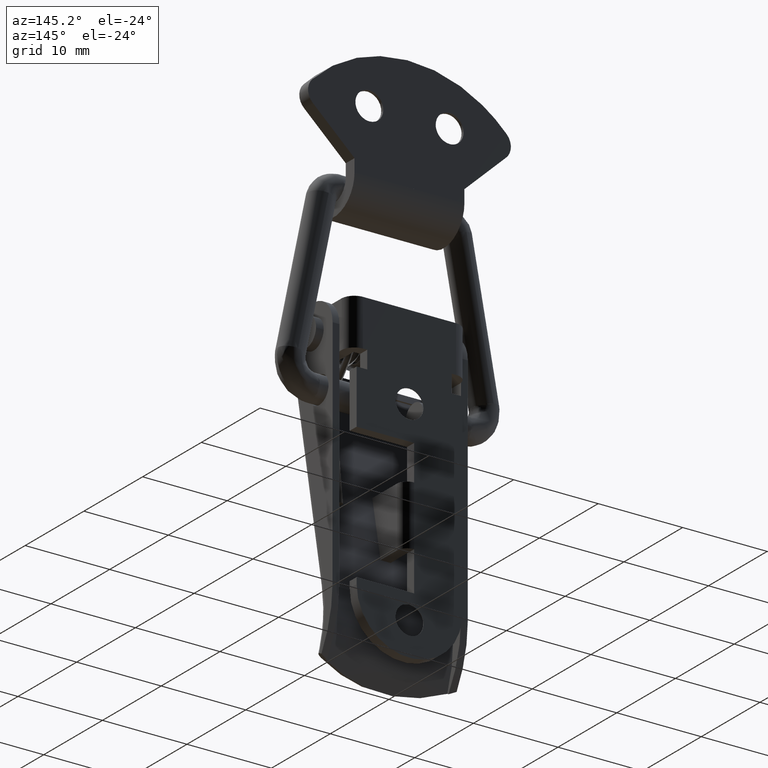
[diagram: clean part render]
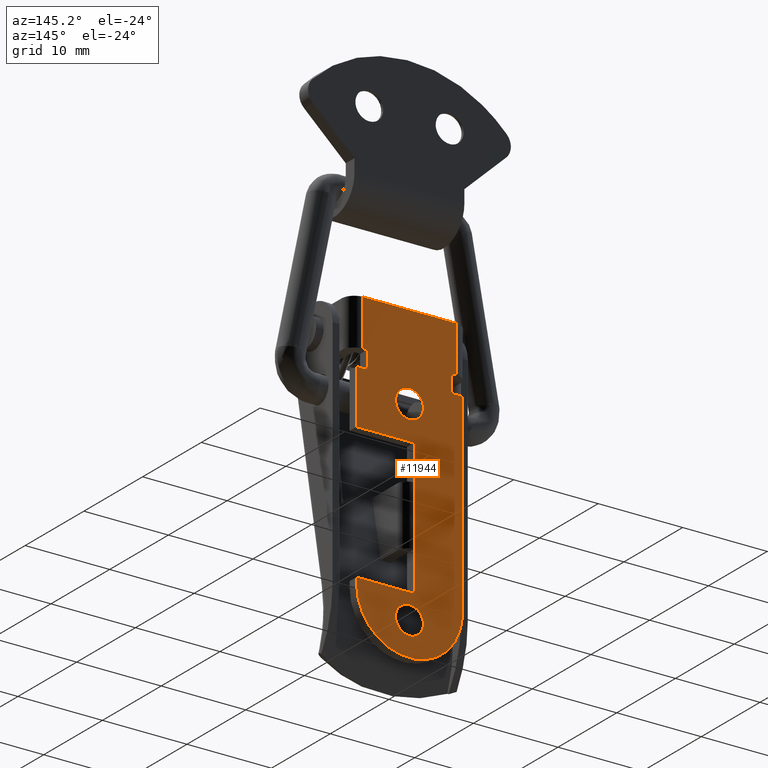
[diagram: same view with one face highlighted and labeled with its STEP entity id]
A machine part, auxiliary view. The second image highlights one B-rep face of the part: STEP entity #11944.
In plain terms, the highlighted face is a freeform B-spline surface patch.
Its self-contained STEP definition (entity closure, byte-faithful):
#9967=CARTESIAN_POINT('',(-1.646922417375860,3.500000000000000,-45.399269909436882));
#9968=VERTEX_POINT('',#9967);
#10008=CARTESIAN_POINT('',(1.646922417375860,3.500000000000000,-45.600730090563118));
#10009=VERTEX_POINT('',#10008);
#10015=CARTESIAN_POINT('',(2.143061E-016,3.500000000000000,-47.149999999999999));
#10016=VERTEX_POINT('',#10015);
#10017=CARTESIAN_POINT('',(2.143061E-016,3.500000000000000,-47.149999999999999));
#10018=CARTESIAN_POINT('',(1.552165010082232,3.499999999999999,-47.149999999999999));
#10019=CARTESIAN_POINT('',(1.646922417375860,3.500000000000000,-45.600730090563118));
#10027=(BOUNDED_CURVE()B_SPLINE_CURVE(2,(#10017,#10018,#10019),.UNSPECIFIED.,.F.,.U.)B_SPLINE_CURVE_WITH_KNOTS((3,3),(0.500000000000000,0.739332962207331),.UNSPECIFIED.)CURVE()GEOMETRIC_REPRESENTATION_ITEM()RATIONAL_B_SPLINE_CURVE((1.0,0.719603993323746,0.976072041598968))REPRESENTATION_ITEM(''));
#10028=EDGE_CURVE('',#10016,#10009,#10027,.T.);
#10030=CARTESIAN_POINT('',(-1.646922417375859,3.500000000000000,-45.399269909436882));
#10031=CARTESIAN_POINT('',(-1.650000000000000,3.500000000000000,-45.449587940391574));
#10032=CARTESIAN_POINT('',(-1.650000000000000,3.500000000000000,-45.500000000000000));
#10033=CARTESIAN_POINT('',(-1.649999999999999,3.499999999999999,-47.149999999999999));
#10034=CARTESIAN_POINT('',(2.143061E-016,3.500000000000000,-47.149999999999999));
#10042=(BOUNDED_CURVE()B_SPLINE_CURVE(2,(#10030,#10031,#10032,#10033,#10034),.UNSPECIFIED.,.F.,.U.)B_SPLINE_CURVE_WITH_KNOTS((3,2,3),(0.239332962207332,0.250000000000000,0.500000000000000),.UNSPECIFIED.)CURVE()GEOMETRIC_REPRESENTATION_ITEM()RATIONAL_B_SPLINE_CURVE((0.976072041598969,0.987502787862802,1.0,0.707106781186548,1.0))REPRESENTATION_ITEM(''));
#10043=EDGE_CURVE('',#9968,#10016,#10042,.T.);
#10067=CARTESIAN_POINT('',(2.143061E-016,3.500000000000000,-43.850000000000001));
#10068=VERTEX_POINT('',#10067);
#10069=CARTESIAN_POINT('',(2.143061E-016,3.500000000000000,-43.850000000000001));
#10070=CARTESIAN_POINT('',(-1.552165010082234,3.500000000000000,-43.850000000000001));
#10071=CARTESIAN_POINT('',(-1.646922417375860,3.500000000000000,-45.399269909436889));
#10079=(BOUNDED_CURVE()B_SPLINE_CURVE(2,(#10069,#10070,#10071),.UNSPECIFIED.,.F.,.U.)B_SPLINE_CURVE_WITH_KNOTS((3,3),(0.0,0.239332962207332),.UNSPECIFIED.)CURVE()GEOMETRIC_REPRESENTATION_ITEM()RATIONAL_B_SPLINE_CURVE((1.0,0.719603993323745,0.976072041598969))REPRESENTATION_ITEM(''));
#10080=EDGE_CURVE('',#10068,#9968,#10079,.T.);
#10082=CARTESIAN_POINT('',(1.646922417375859,3.500000000000000,-45.600730090563118));
#10083=CARTESIAN_POINT('',(1.650000000000000,3.500000000000000,-45.550412059608433));
#10084=CARTESIAN_POINT('',(1.650000000000000,3.500000000000000,-45.500000000000000));
#10085=CARTESIAN_POINT('',(1.649999999999999,3.499999999999999,-43.850000000000001));
#10086=CARTESIAN_POINT('',(2.143061E-016,3.500000000000000,-43.850000000000001));
#10094=(BOUNDED_CURVE()B_SPLINE_CURVE(2,(#10082,#10083,#10084,#10085,#10086),.UNSPECIFIED.,.F.,.U.)B_SPLINE_CURVE_WITH_KNOTS((3,2,3),(0.739332962207330,0.750000000000000,1.0),.UNSPECIFIED.)CURVE()GEOMETRIC_REPRESENTATION_ITEM()RATIONAL_B_SPLINE_CURVE((0.976072041598966,0.987502787862801,1.0,0.707106781186548,1.0))REPRESENTATION_ITEM(''));
#10095=EDGE_CURVE('',#10009,#10068,#10094,.T.);
#10271=CARTESIAN_POINT('',(-1.646922417375860,3.500000000000000,-22.399269909436889));
#10272=VERTEX_POINT('',#10271);
#10312=CARTESIAN_POINT('',(1.646922417375861,3.500000000000000,-22.600730090563111));
#10313=VERTEX_POINT('',#10312);
#10319=CARTESIAN_POINT('',(2.143061E-016,3.500000000000000,-24.149999999999999));
#10320=VERTEX_POINT('',#10319);
#10321=CARTESIAN_POINT('',(2.143061E-016,3.500000000000000,-24.149999999999999));
#10322=CARTESIAN_POINT('',(1.552165010082242,3.500000000000000,-24.150000000000006));
#10323=CARTESIAN_POINT('',(1.646922417375861,3.500000000000000,-22.600730090563104));
#10331=(BOUNDED_CURVE()B_SPLINE_CURVE(2,(#10321,#10322,#10323),.UNSPECIFIED.,.F.,.U.)B_SPLINE_CURVE_WITH_KNOTS((3,3),(0.500000000000000,0.739332962207332),.UNSPECIFIED.)CURVE()GEOMETRIC_REPRESENTATION_ITEM()RATIONAL_B_SPLINE_CURVE((1.0,0.719603993323744,0.976072041598970))REPRESENTATION_ITEM(''));
#10332=EDGE_CURVE('',#10320,#10313,#10331,.T.);
#10334=CARTESIAN_POINT('',(-1.646922417375861,3.500000000000000,-22.399269909436896));
#10335=CARTESIAN_POINT('',(-1.650000000000000,3.500000000000000,-22.449587940391567));
#10336=CARTESIAN_POINT('',(-1.650000000000000,3.500000000000000,-22.500000000000000));
#10337=CARTESIAN_POINT('',(-1.649999999999999,3.499999999999999,-24.149999999999995));
#10338=CARTESIAN_POINT('',(2.143061E-016,3.500000000000000,-24.149999999999999));
#10346=(BOUNDED_CURVE()B_SPLINE_CURVE(2,(#10334,#10335,#10336,#10337,#10338),.UNSPECIFIED.,.F.,.U.)B_SPLINE_CURVE_WITH_KNOTS((3,2,3),(0.239332962207333,0.250000000000000,0.500000000000000),.UNSPECIFIED.)CURVE()GEOMETRIC_REPRESENTATION_ITEM()RATIONAL_B_SPLINE_CURVE((0.976072041598971,0.987502787862804,1.0,0.707106781186548,1.0))REPRESENTATION_ITEM(''));
#10347=EDGE_CURVE('',#10272,#10320,#10346,.T.);
#10371=CARTESIAN_POINT('',(2.143061E-016,3.500000000000000,-20.850000000000001));
#10372=VERTEX_POINT('',#10371);
#10373=CARTESIAN_POINT('',(2.143061E-016,3.500000000000000,-20.850000000000001));
#10374=CARTESIAN_POINT('',(-1.552165010082240,3.500000000000000,-20.850000000000005));
#10375=CARTESIAN_POINT('',(-1.646922417375860,3.500000000000000,-22.399269909436889));
#10383=(BOUNDED_CURVE()B_SPLINE_CURVE(2,(#10373,#10374,#10375),.UNSPECIFIED.,.F.,.U.)B_SPLINE_CURVE_WITH_KNOTS((3,3),(0.0,0.239332962207332),.UNSPECIFIED.)CURVE()GEOMETRIC_REPRESENTATION_ITEM()RATIONAL_B_SPLINE_CURVE((1.0,0.719603993323745,0.976072041598970))REPRESENTATION_ITEM(''));
#10384=EDGE_CURVE('',#10372,#10272,#10383,.T.);
#10386=CARTESIAN_POINT('',(1.646922417375861,3.500000000000000,-22.600730090563115));
#10387=CARTESIAN_POINT('',(1.650000000000000,3.500000000000000,-22.550412059608430));
#10388=CARTESIAN_POINT('',(1.650000000000000,3.500000000000000,-22.500000000000000));
#10389=CARTESIAN_POINT('',(1.649999999999999,3.499999999999999,-20.850000000000005));
#10390=CARTESIAN_POINT('',(2.143061E-016,3.500000000000000,-20.850000000000001));
#10398=(BOUNDED_CURVE()B_SPLINE_CURVE(2,(#10386,#10387,#10388,#10389,#10390),.UNSPECIFIED.,.F.,.U.)B_SPLINE_CURVE_WITH_KNOTS((3,2,3),(0.739332962207332,0.750000000000000,1.0),.UNSPECIFIED.)CURVE()GEOMETRIC_REPRESENTATION_ITEM()RATIONAL_B_SPLINE_CURVE((0.976072041598970,0.987502787862803,1.0,0.707106781186548,1.0))REPRESENTATION_ITEM(''));
#10399=EDGE_CURVE('',#10313,#10372,#10398,.T.);
#10926=CARTESIAN_POINT('',(4.999999999999830,3.499999999999950,-18.001000000000001));
#10927=VERTEX_POINT('',#10926);
#10928=CARTESIAN_POINT('',(5.499999999999840,3.500000000000000,-18.001000000000001));
#10929=VERTEX_POINT('',#10928);
#10930=CARTESIAN_POINT('',(4.999999999999830,3.499999999999950,-18.001000000000001));
#10931=CARTESIAN_POINT('',(5.499999999999840,3.500000000000000,-18.001000000000001));
#10932=QUASI_UNIFORM_CURVE('',1,(#10930,#10931),.UNSPECIFIED.,.F.,.U.);
#10933=EDGE_CURVE('',#10927,#10929,#10932,.T.);
#11002=CARTESIAN_POINT('',(5.499999999999840,3.500000000000000,-12.500999999999999));
#11003=VERTEX_POINT('',#11002);
#11023=CARTESIAN_POINT('',(5.499999999999840,3.500000000000000,-12.500999999999999));
#11024=CARTESIAN_POINT('',(5.499999999999840,3.500000000000000,-18.001000000000001));
#11025=QUASI_UNIFORM_CURVE('',1,(#11023,#11024),.UNSPECIFIED.,.F.,.U.);
#11026=EDGE_CURVE('',#11003,#10929,#11025,.T.);
#11045=CARTESIAN_POINT('',(-5.500000000000000,3.500000000000000,-12.500999999999999));
#11046=VERTEX_POINT('',#11045);
#11062=CARTESIAN_POINT('',(-5.500000000000000,3.500000000000000,-18.001000000000001));
#11063=VERTEX_POINT('',#11062);
#11064=CARTESIAN_POINT('',(-5.500000000000000,3.500000000000000,-18.001000000000001));
#11065=CARTESIAN_POINT('',(-5.500000000000000,3.500000000000000,-12.500999999999999));
#11066=QUASI_UNIFORM_CURVE('',1,(#11064,#11065),.UNSPECIFIED.,.F.,.U.);
#11067=EDGE_CURVE('',#11063,#11046,#11066,.T.);
#11108=CARTESIAN_POINT('',(-0.550000000000182,3.499999999999950,-30.701000000000001));
#11109=VERTEX_POINT('',#11108);
#11129=CARTESIAN_POINT('',(-0.550000000000182,3.499999999999950,-37.801000000000002));
#11130=VERTEX_POINT('',#11129);
#11143=CARTESIAN_POINT('',(-0.550000000000182,3.499999999999950,-30.701000000000001));
#11144=CARTESIAN_POINT('',(-0.550000000000182,3.499999999999950,-37.801000000000002));
#11145=QUASI_UNIFORM_CURVE('',1,(#11143,#11144),.UNSPECIFIED.,.F.,.U.);
#11146=EDGE_CURVE('',#11109,#11130,#11145,.T.);
#11227=CARTESIAN_POINT('',(4.999999999999830,3.499999999999950,-20.100999999999999));
#11228=VERTEX_POINT('',#11227);
#11234=CARTESIAN_POINT('',(4.999999999999830,3.499999999999950,-18.001000000000001));
#11235=CARTESIAN_POINT('',(4.999999999999830,3.499999999999950,-20.100999999999999));
#11236=QUASI_UNIFORM_CURVE('',1,(#11234,#11235),.UNSPECIFIED.,.F.,.U.);
#11237=EDGE_CURVE('',#10927,#11228,#11236,.T.);
#11257=CARTESIAN_POINT('',(-5.0,3.499999999999951,-18.001000000000001));
#11258=VERTEX_POINT('',#11257);
#11264=CARTESIAN_POINT('',(-5.0,3.499999999999951,-20.100999999999999));
#11265=VERTEX_POINT('',#11264);
#11266=CARTESIAN_POINT('',(-5.0,3.499999999999951,-20.100999999999999));
#11267=CARTESIAN_POINT('',(-5.0,3.499999999999951,-18.001000000000001));
#11268=QUASI_UNIFORM_CURVE('',1,(#11266,#11267),.UNSPECIFIED.,.F.,.U.);
#11269=EDGE_CURVE('',#11265,#11258,#11268,.T.);
#11292=CARTESIAN_POINT('',(-6.250000000000000,3.499999999999951,-20.100999999999999));
#11293=VERTEX_POINT('',#11292);
#11294=CARTESIAN_POINT('',(-6.250000000000000,3.499999999999951,-20.100999999999999));
#11295=CARTESIAN_POINT('',(-5.0,3.499999999999951,-20.100999999999999));
#11296=QUASI_UNIFORM_CURVE('',1,(#11294,#11295),.UNSPECIFIED.,.F.,.U.);
#11297=EDGE_CURVE('',#11293,#11265,#11296,.T.);
#11320=CARTESIAN_POINT('',(-6.250000000000000,3.499999999999951,-43.250999999999998));
#11321=VERTEX_POINT('',#11320);
#11322=CARTESIAN_POINT('',(-6.250000000000000,3.499999999999951,-43.250999999999998));
#11323=CARTESIAN_POINT('',(-6.250000000000000,3.499999999999951,-20.100999999999999));
#11324=QUASI_UNIFORM_CURVE('',1,(#11322,#11323),.UNSPECIFIED.,.F.,.U.);
#11325=EDGE_CURVE('',#11321,#11293,#11324,.T.);
#11380=CARTESIAN_POINT('',(6.250000000000000,3.499999999999950,-43.250999999999998));
#11381=VERTEX_POINT('',#11380);
#11382=CARTESIAN_POINT('',(6.250000000000000,3.499999999999950,-43.250999999999998));
#11383=CARTESIAN_POINT('',(6.250122417193252,3.499999999999950,-43.762325256583210));
#11384=CARTESIAN_POINT('',(6.126966191554085,3.499999999999951,-44.759352129324988));
#11385=CARTESIAN_POINT('',(5.643843281983694,3.499999999999944,-46.035185132834940));
#11386=CARTESIAN_POINT('',(5.039680955609988,3.499999999999969,-46.989050611799982));
#11387=CARTESIAN_POINT('',(4.331747876635087,3.499999999999936,-47.799699940806683));
#11388=CARTESIAN_POINT('',(3.492997535579789,3.499999999999959,-48.479487259764340));
#11389=CARTESIAN_POINT('',(2.429313955556077,3.499999999999976,-49.048012005560459));
#11390=CARTESIAN_POINT('',(1.278285745438831,3.499999999999950,-49.412686893273978));
#11391=CARTESIAN_POINT('',(0.076697891066533,3.499999999999900,-49.538468799752529));
#11392=CARTESIAN_POINT('',(-0.945920997922732,3.499999999999991,-49.450353535424100));
#11393=CARTESIAN_POINT('',(-1.869012861132869,3.499999999999977,-49.237107448984503));
#11394=CARTESIAN_POINT('',(-2.778802268428919,3.499999999999840,-48.886204915753318));
#11395=CARTESIAN_POINT('',(-3.853963131814652,3.500000000000189,-48.232854818257941));
#11396=CARTESIAN_POINT('',(-4.712150090907485,3.499999999999852,-47.415835606777357));
#11397=CARTESIAN_POINT('',(-5.381808931432370,3.499999999999985,-46.477061871410392));
#11398=CARTESIAN_POINT('',(-5.854903210448168,3.499999999999933,-45.537323645891391));
#11399=CARTESIAN_POINT('',(-6.176844849101858,3.499999999999969,-44.427024828230302));
#11400=CARTESIAN_POINT('',(-6.250034158851613,3.499999999999928,-43.634482548508117));
#11401=CARTESIAN_POINT('',(-6.250000000000000,3.499999999999951,-43.250999999999998));
#11402=B_SPLINE_CURVE_WITH_KNOTS('',3,(#11382,#11383,#11384,#11385,#11386,#11387,#11388,#11389,#11390,#11391,#11392,#11393,#11394,#11395,#11396,#11397,#11398,#11399,#11400,#11401),.UNSPECIFIED.,.F.,.U.,(4,1,1,1,1,1,1,1,1,1,1,1,1,1,1,1,1,4),(0.000000010121585,1.533952939676102,2.991268050401782,4.065068105736410,4.908771073819473,6.212679880875090,7.286472827040699,8.513688539381864,9.817539270919186,10.891289877792200,11.581592067716921,12.655419429156190,13.805911129516360,15.339907641363309,16.183618361170851,17.257408215544540,18.484627199374891,19.635077286014010),.UNSPECIFIED.);
#11403=EDGE_CURVE('',#11381,#11321,#11402,.T.);
#11426=CARTESIAN_POINT('',(6.250000000000000,3.499999999999950,-42.500999999999998));
#11427=VERTEX_POINT('',#11426);
#11428=CARTESIAN_POINT('',(6.250000000000000,3.499999999999950,-42.500999999999998));
#11429=CARTESIAN_POINT('',(6.250000000000000,3.499999999999950,-43.250999999999998));
#11430=QUASI_UNIFORM_CURVE('',1,(#11428,#11429),.UNSPECIFIED.,.F.,.U.);
#11431=EDGE_CURVE('',#11427,#11381,#11430,.T.);
#11454=CARTESIAN_POINT('',(-0.550000000000182,3.499999999999950,-42.500999999999998));
#11455=VERTEX_POINT('',#11454);
#11456=CARTESIAN_POINT('',(-0.550000000000182,3.499999999999950,-42.500999999999998));
#11457=CARTESIAN_POINT('',(6.250000000000000,3.499999999999950,-42.500999999999998));
#11458=QUASI_UNIFORM_CURVE('',1,(#11456,#11457),.UNSPECIFIED.,.F.,.U.);
#11459=EDGE_CURVE('',#11455,#11427,#11458,.T.);
#11480=CARTESIAN_POINT('',(-0.550000000000182,3.499999999999950,-37.801000000000002));
#11481=CARTESIAN_POINT('',(-0.550000000000182,3.499999999999950,-42.500999999999998));
#11482=QUASI_UNIFORM_CURVE('',1,(#11480,#11481),.UNSPECIFIED.,.F.,.U.);
#11483=EDGE_CURVE('',#11130,#11455,#11482,.T.);
#11556=CARTESIAN_POINT('',(-0.550000000000182,3.499999999999950,-26.501000000000001));
#11557=VERTEX_POINT('',#11556);
#11558=CARTESIAN_POINT('',(-0.550000000000182,3.499999999999950,-26.501000000000001));
#11559=CARTESIAN_POINT('',(-0.550000000000182,3.499999999999950,-30.701000000000001));
#11560=QUASI_UNIFORM_CURVE('',1,(#11558,#11559),.UNSPECIFIED.,.F.,.U.);
#11561=EDGE_CURVE('',#11557,#11109,#11560,.T.);
#11584=CARTESIAN_POINT('',(6.250000000000000,3.499999999999950,-26.501000000000001));
#11585=VERTEX_POINT('',#11584);
#11586=CARTESIAN_POINT('',(6.250000000000000,3.499999999999950,-26.501000000000001));
#11587=CARTESIAN_POINT('',(-0.550000000000182,3.499999999999950,-26.501000000000001));
#11588=QUASI_UNIFORM_CURVE('',1,(#11586,#11587),.UNSPECIFIED.,.F.,.U.);
#11589=EDGE_CURVE('',#11585,#11557,#11588,.T.);
#11612=CARTESIAN_POINT('',(6.250000000000000,3.499999999999950,-20.100999999999999));
#11613=VERTEX_POINT('',#11612);
#11614=CARTESIAN_POINT('',(6.250000000000000,3.499999999999950,-20.100999999999999));
#11615=CARTESIAN_POINT('',(6.250000000000000,3.499999999999950,-26.501000000000001));
#11616=QUASI_UNIFORM_CURVE('',1,(#11614,#11615),.UNSPECIFIED.,.F.,.U.);
#11617=EDGE_CURVE('',#11613,#11585,#11616,.T.);
#11638=CARTESIAN_POINT('',(4.999999999999830,3.499999999999950,-20.100999999999999));
#11639=CARTESIAN_POINT('',(6.250000000000000,3.499999999999950,-20.100999999999999));
#11640=QUASI_UNIFORM_CURVE('',1,(#11638,#11639),.UNSPECIFIED.,.F.,.U.);
#11641=EDGE_CURVE('',#11228,#11613,#11640,.T.);
#11899=CARTESIAN_POINT('',(6.874374975772574,3.500000000000000,-51.349149928286678));
#11900=CARTESIAN_POINT('',(6.874374975772574,3.500000000000000,-10.652849079295850));
#11901=CARTESIAN_POINT('',(-6.874375311048701,3.500000000000000,-51.349149928286678));
#11902=CARTESIAN_POINT('',(-6.874375311048701,3.500000000000000,-10.652849079295850));
#11903=B_SPLINE_SURFACE_WITH_KNOTS('',1,1,((#11899,#11901),(#11900,#11902)),.UNSPECIFIED.,.F.,.F.,.U.,(2,2),(2,2),(0.0,40.696300848990830),(0.0,13.748750286821281),.UNSPECIFIED.);
#11904=CARTESIAN_POINT('',(-5.500000000000000,3.500000000000000,-18.001000000000001));
#11905=CARTESIAN_POINT('',(-5.0,3.499999999999951,-18.001000000000001));
#11906=QUASI_UNIFORM_CURVE('',1,(#11904,#11905),.UNSPECIFIED.,.F.,.U.);
#11907=EDGE_CURVE('',#11063,#11258,#11906,.T.);
#11908=ORIENTED_EDGE('',*,*,#11907,.F.);
#11909=ORIENTED_EDGE('',*,*,#11067,.T.);
#11910=CARTESIAN_POINT('',(-5.500000000000000,3.500000000000000,-12.500999999999999));
#11911=CARTESIAN_POINT('',(5.499999999999840,3.500000000000000,-12.500999999999999));
#11912=QUASI_UNIFORM_CURVE('',1,(#11910,#11911),.UNSPECIFIED.,.F.,.U.);
#11913=EDGE_CURVE('',#11046,#11003,#11912,.T.);
#11914=ORIENTED_EDGE('',*,*,#11913,.T.);
#11915=ORIENTED_EDGE('',*,*,#11026,.T.);
#11916=ORIENTED_EDGE('',*,*,#10933,.F.);
#11917=ORIENTED_EDGE('',*,*,#11237,.T.);
#11918=ORIENTED_EDGE('',*,*,#11641,.T.);
#11919=ORIENTED_EDGE('',*,*,#11617,.T.);
#11920=ORIENTED_EDGE('',*,*,#11589,.T.);
#11921=ORIENTED_EDGE('',*,*,#11561,.T.);
#11922=ORIENTED_EDGE('',*,*,#11146,.T.);
#11923=ORIENTED_EDGE('',*,*,#11483,.T.);
#11924=ORIENTED_EDGE('',*,*,#11459,.T.);
#11925=ORIENTED_EDGE('',*,*,#11431,.T.);
#11926=ORIENTED_EDGE('',*,*,#11403,.T.);
#11927=ORIENTED_EDGE('',*,*,#11325,.T.);
#11928=ORIENTED_EDGE('',*,*,#11297,.T.);
#11929=ORIENTED_EDGE('',*,*,#11269,.T.);
#11930=EDGE_LOOP('',(#11908,#11909,#11914,#11915,#11916,#11917,#11918,#11919,#11920,#11921,#11922,#11923,#11924,#11925,#11926,#11927,#11928,#11929));
#11931=FACE_OUTER_BOUND('',#11930,.T.);
#11932=ORIENTED_EDGE('',*,*,#10332,.T.);
#11933=ORIENTED_EDGE('',*,*,#10399,.T.);
#11934=ORIENTED_EDGE('',*,*,#10384,.T.);
#11935=ORIENTED_EDGE('',*,*,#10347,.T.);
#11936=EDGE_LOOP('',(#11932,#11933,#11934,#11935));
#11937=FACE_BOUND('',#11936,.T.);
#11938=ORIENTED_EDGE('',*,*,#10028,.T.);
#11939=ORIENTED_EDGE('',*,*,#10095,.T.);
#11940=ORIENTED_EDGE('',*,*,#10080,.T.);
#11941=ORIENTED_EDGE('',*,*,#10043,.T.);
#11942=EDGE_LOOP('',(#11938,#11939,#11940,#11941));
#11943=FACE_BOUND('',#11942,.T.);
#11944=ADVANCED_FACE('',(#11931,#11937,#11943),#11903,.F.);